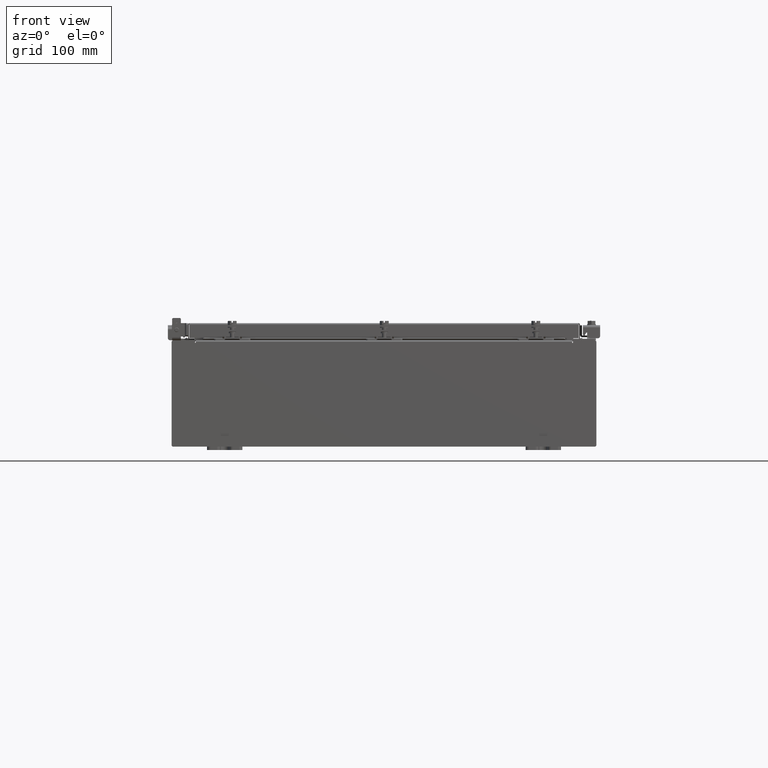
[diagram: clean part render]
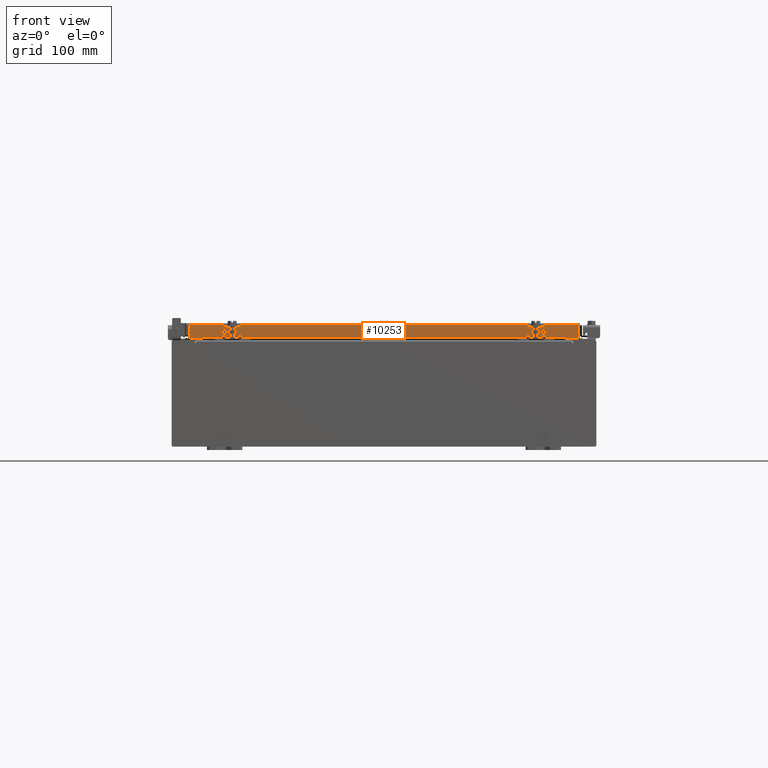
[diagram: same view with one face highlighted and labeled with its STEP entity id]
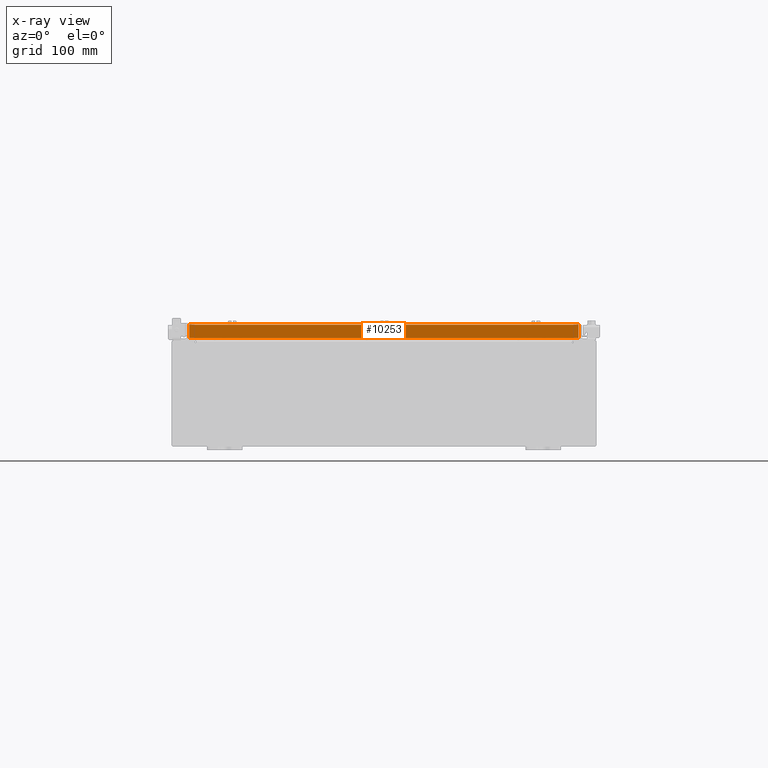
[diagram: x-ray of the same camera — body ghosted, the highlighted face saturated]
A machine part, front view. The second image highlights one B-rep face of the part: STEP entity #10253.
The next image is the same camera in x-ray: the body ghosted, the highlighted face saturated — about 0% of this face is hidden behind the body in this view.
In plain terms, the highlighted planar face has unit normal (0, 1, -0).
Its self-contained STEP definition (entity closure, byte-faithful):
#22 = LINE ( 'NONE', #14528, #8923 ) ;
#116 = DIRECTION ( 'NONE',  ( 1.000000000000000000, -9.864047639155999200E-017, -9.196021172131615100E-046 ) ) ;
#460 = VERTEX_POINT ( 'NONE', #10254 ) ;
#1904 = CARTESIAN_POINT ( 'NONE',  ( 10.23915786437626900, -14.09399999999999900, -0.8500000000000012000 ) ) ;
#2278 = CARTESIAN_POINT ( 'NONE',  ( 10.98915786437626900, -14.09400000000000300, -0.8499999999999996400 ) ) ;
#2462 = EDGE_CURVE ( 'NONE', #2827, #13571, #7967, .T. ) ;
#2827 = VERTEX_POINT ( 'NONE', #2278 ) ;
#3845 = DIRECTION ( 'NONE',  ( 0.0000000000000000000, -2.818880942772360500E-015, -1.000000000000000000 ) ) ;
#4265 = CARTESIAN_POINT ( 'NONE',  ( 10.98915786437624400, -14.09400000000000100, -0.08770000000000224800 ) ) ;
#4790 = EDGE_CURVE ( 'NONE', #5674, #2827, #15127, .T. ) ;
#4954 = LINE ( 'NONE', #1904, #14419 ) ;
#5008 = CARTESIAN_POINT ( 'NONE',  ( 11.07799999999999800, -14.09400000000000300, -0.8499999999999996400 ) ) ;
#5674 = VERTEX_POINT ( 'NONE', #4265 ) ;
#6014 = DIRECTION ( 'NONE',  ( -1.000000000000000000, 9.864047639156033700E-017, 1.233005954894504400E-016 ) ) ;
#6176 = VECTOR ( 'NONE', #16742, 39.37007874015748100 ) ;
#7281 = ORIENTED_EDGE ( 'NONE', *, *, #4790, .F. ) ;
#7451 = ORIENTED_EDGE ( 'NONE', *, *, #9706, .F. ) ;
#7461 = EDGE_CURVE ( 'NONE', #18492, #21323, #22, .T. ) ;
#7525 = CARTESIAN_POINT ( 'NONE',  ( 11.07799999999999800, -14.09400000000000300, -0.8499999999999996400 ) ) ;
#7916 = EDGE_CURVE ( 'NONE', #460, #21323, #15115, .T. ) ;
#7967 = LINE ( 'NONE', #7525, #16921 ) ;
#8070 = LINE ( 'NONE', #12624, #12811 ) ;
#8206 = PLANE ( 'NONE',  #13195 ) ;
#8923 = VECTOR ( 'NONE', #3845, 39.37007874015748100 ) ;
#9134 = FACE_OUTER_BOUND ( 'NONE', #20760, .T. ) ;
#9706 = EDGE_CURVE ( 'NONE', #18492, #5674, #8070, .T. ) ;
#9990 = DIRECTION ( 'NONE',  ( 0.0000000000000000000, 2.818880942772360500E-015, 1.000000000000000000 ) ) ;
#10253 = ADVANCED_FACE ( 'NONE', ( #9134 ), #8206, .F. ) ;
#10254 = CARTESIAN_POINT ( 'NONE',  ( -10.23915786437626900, -14.09399999999999900, -0.8500000000000012000 ) ) ;
#10356 = VECTOR ( 'NONE', #10360, 39.37007874015748100 ) ;
#10360 = DIRECTION ( 'NONE',  ( -1.000000000000000000, 9.864047639156033700E-017, 1.233005954894504400E-016 ) ) ;
#10651 = ORIENTED_EDGE ( 'NONE', *, *, #7461, .T. ) ;
#11297 = EDGE_CURVE ( 'NONE', #13571, #460, #4954, .T. ) ;
#12181 = CARTESIAN_POINT ( 'NONE',  ( -10.98915786437626900, -14.09400000000000100, -0.8499999999999969800 ) ) ;
#12624 = CARTESIAN_POINT ( 'NONE',  ( 11.07799999999999900, -14.09400000000000100, -0.08770000000000224800 ) ) ;
#12798 = CARTESIAN_POINT ( 'NONE',  ( 10.23915786437626700, -14.09399999999999900, -0.8500000000000012000 ) ) ;
#12811 = VECTOR ( 'NONE', #116, 39.37007874015748100 ) ;
#12870 = ORIENTED_EDGE ( 'NONE', *, *, #7916, .F. ) ;
#13195 = AXIS2_PLACEMENT_3D ( 'NONE', #15314, #20770, #9990 ) ;
#13571 = VERTEX_POINT ( 'NONE', #12798 ) ;
#14407 = DIRECTION ( 'NONE',  ( -1.000000000000000000, 0.0000000000000000000, 0.0000000000000000000 ) ) ;
#14419 = VECTOR ( 'NONE', #14407, 39.37007874015748100 ) ;
#14528 = CARTESIAN_POINT ( 'NONE',  ( -10.98915786437626900, -14.09399999999999900, 3.999012166344522900E-014 ) ) ;
#15115 = LINE ( 'NONE', #5008, #10356 ) ;
#15127 = LINE ( 'NONE', #16820, #6176 ) ;
#15314 = CARTESIAN_POINT ( 'NONE',  ( -1.390238874262646300E-015, -14.09399999999999900, 3.999012166344522900E-014 ) ) ;
#16742 = DIRECTION ( 'NONE',  ( 0.0000000000000000000, -2.818880942772360500E-015, -1.000000000000000000 ) ) ;
#16820 = CARTESIAN_POINT ( 'NONE',  ( 10.98915786437626900, -14.09400000000000100, -0.07469999999999978000 ) ) ;
#16921 = VECTOR ( 'NONE', #6014, 39.37007874015748100 ) ;
#18492 = VERTEX_POINT ( 'NONE', #21965 ) ;
#19251 = ORIENTED_EDGE ( 'NONE', *, *, #2462, .F. ) ;
#20760 = EDGE_LOOP ( 'NONE', ( #7451, #10651, #12870, #22476, #19251, #7281 ) ) ;
#20770 = DIRECTION ( 'NONE',  ( 9.864047639155998000E-017, 1.000000000000000000, -2.818880942772360500E-015 ) ) ;
#21323 = VERTEX_POINT ( 'NONE', #12181 ) ;
#21965 = CARTESIAN_POINT ( 'NONE',  ( -10.98915786437626700, -14.09399999999999900, -0.08770000000000224800 ) ) ;
#22476 = ORIENTED_EDGE ( 'NONE', *, *, #11297, .F. ) ;